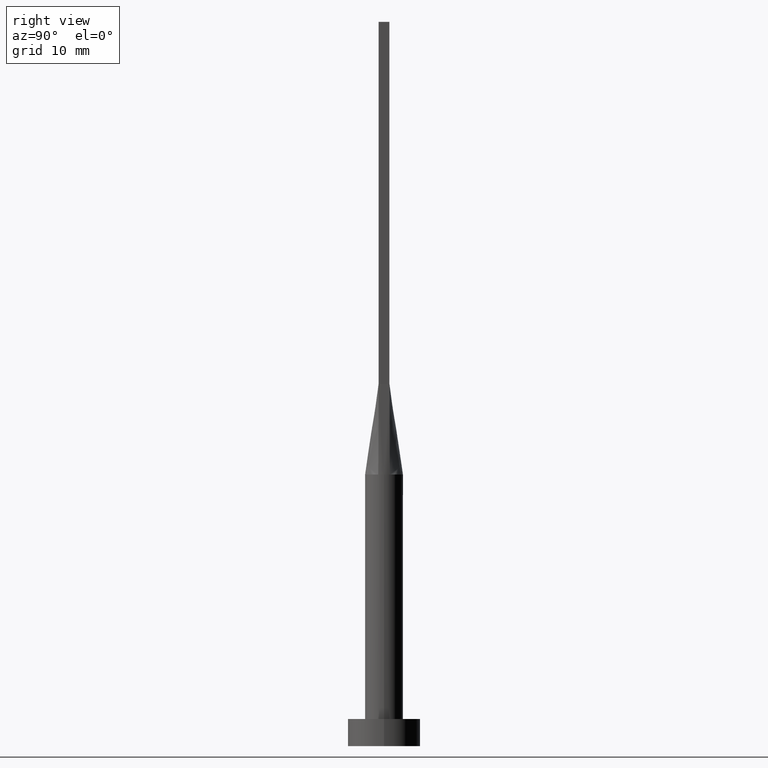
[diagram: clean part render]
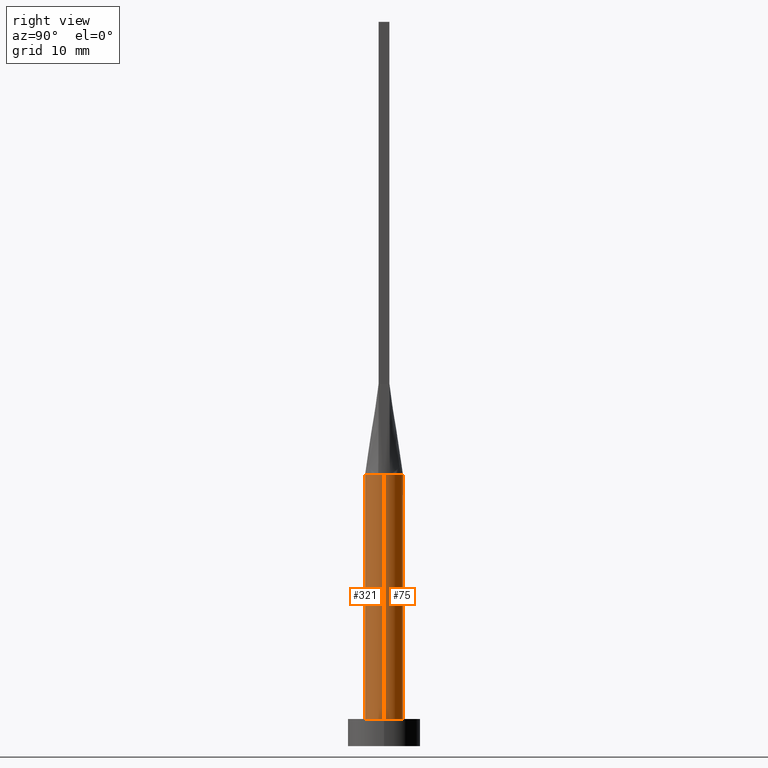
[diagram: same view with one multi-face feature highlighted, each face labeled with its STEP entity id]
A machine part, right view. The highlighted faces form ONE feature: a constant-radius fillet chain: 2 tangent blend faces with common blend radius 2.1 mm. The faces share edges in the B-rep.
Their STEP definitions:
[1] entity #75 (Cylinder):
#9 = CYLINDRICAL_SURFACE ( 'NONE', #532, 2.100000000000000089 ) ;
#10 = ORIENTED_EDGE ( 'NONE', *, *, #257, .F. ) ;
#23 = CARTESIAN_POINT ( 'NONE',  ( 2.100000000000000089, 2.571758278209441957E-16, 3.000000000000000000 ) ) ;
#68 = ORIENTED_EDGE ( 'NONE', *, *, #193, .F. ) ;
#72 = VECTOR ( 'NONE', #146, 1000.000000000000000 ) ;
#75 = ADVANCED_FACE ( 'NONE', ( #332 ), #9, .T. ) ;
#78 = CARTESIAN_POINT ( 'NONE',  ( -2.002622288503867587, 0.6324075186587619912, 30.00000000000000000 ) ) ;
#84 = CARTESIAN_POINT ( 'NONE',  ( -2.100000000000000089, 0.000000000000000000, 30.00000000000000000 ) ) ;
#88 = CARTESIAN_POINT ( 'NONE',  ( 0.000000000000000000, 0.000000000000000000, 30.00000000000000000 ) ) ;
#89 = EDGE_CURVE ( 'NONE', #178, #326, #455, .T. ) ;
#94 = CARTESIAN_POINT ( 'NONE',  ( -0.5124799074986362557, 2.051574327850739454, 30.00000000000000711 ) ) ;
#119 = LINE ( 'NONE', #84, #338 ) ;
#129 = CARTESIAN_POINT ( 'NONE',  ( 1.184262492297964098, 1.748903470433445628, 29.99999999999999289 ) ) ;
#134 = CARTESIAN_POINT ( 'NONE',  ( -1.184262492297963876, 1.748903470433446294, 30.00000000000000000 ) ) ;
#140 = AXIS2_PLACEMENT_3D ( 'NONE', #88, #169, #324 ) ;
#143 = DIRECTION ( 'NONE',  ( 0.000000000000000000, 0.000000000000000000, 1.000000000000000000 ) ) ;
#146 = DIRECTION ( 'NONE',  ( -0.000000000000000000, -0.000000000000000000, -1.000000000000000000 ) ) ;
#158 = CARTESIAN_POINT ( 'NONE',  ( 1.667357759214464608, 1.291791096182927090, 30.00000000000001066 ) ) ;
#169 = DIRECTION ( 'NONE',  ( 0.000000000000000000, 0.000000000000000000, 1.000000000000000000 ) ) ;
#173 = CARTESIAN_POINT ( 'NONE',  ( 2.100000000000000089, 3.372022381799045987E-17, 30.00000000000000000 ) ) ;
#174 = DIRECTION ( 'NONE',  ( -0.000000000000000000, -0.000000000000000000, -1.000000000000000000 ) ) ;
#178 = VERTEX_POINT ( 'NONE', #23 ) ;
#188 = VERTEX_POINT ( 'NONE', #560 ) ;
#193 = EDGE_CURVE ( 'NONE', #271, #491, #317, .T. ) ;
#211 = AXIS2_PLACEMENT_3D ( 'NONE', #327, #579, #548 ) ;
#214 = VERTEX_POINT ( 'NONE', #78 ) ;
#224 = CARTESIAN_POINT ( 'NONE',  ( 0.000000000000000000, 0.000000000000000000, 30.00000000000000000 ) ) ;
#227 = CARTESIAN_POINT ( 'NONE',  ( -2.100000000000000089, 0.000000000000000000, 3.000000000000000000 ) ) ;
#229 = AXIS2_PLACEMENT_3D ( 'NONE', #553, #143, #505 ) ;
#234 = CARTESIAN_POINT ( 'NONE',  ( 0.9765948449220478444, 1.875594675604967065, 29.99999999999999645 ) ) ;
#254 = CARTESIAN_POINT ( 'NONE',  ( 1.952271707612931895, 0.7915068550356627597, 30.00000000000000355 ) ) ;
#257 = EDGE_CURVE ( 'NONE', #491, #214, #462, .T. ) ;
#266 = CARTESIAN_POINT ( 'NONE',  ( -1.667357759214464830, 1.291791096182927534, 30.00000000000000355 ) ) ;
#271 = VERTEX_POINT ( 'NONE', #173 ) ;
#289 = ORIENTED_EDGE ( 'NONE', *, *, #89, .T. ) ;
#296 = EDGE_CURVE ( 'NONE', #214, #188, #558, .T. ) ;
#300 = CARTESIAN_POINT ( 'NONE',  ( 2.002598039528881380, 0.6323997261616642884, 30.00000000000000000 ) ) ;
#317 = CIRCLE ( 'NONE', #229, 2.100000000000000089 ) ;
#324 = DIRECTION ( 'NONE',  ( 1.000000000000000000, 0.000000000000000000, 0.000000000000000000 ) ) ;
#326 = VERTEX_POINT ( 'NONE', #227 ) ;
#327 = CARTESIAN_POINT ( 'NONE',  ( 0.000000000000000000, 0.000000000000000000, 3.000000000000000000 ) ) ;
#332 = FACE_OUTER_BOUND ( 'NONE', #483, .T. ) ;
#338 = VECTOR ( 'NONE', #386, 1000.000000000000000 ) ;
#353 = CARTESIAN_POINT ( 'NONE',  ( -2.002622288503867587, 0.6324075186587619912, 30.00000000000000000 ) ) ;
#357 = ORIENTED_EDGE ( 'NONE', *, *, #413, .F. ) ;
#360 = CARTESIAN_POINT ( 'NONE',  ( 0.5124799074986362557, 2.051574327850739454, 30.00000000000001421 ) ) ;
#373 = CARTESIAN_POINT ( 'NONE',  ( 2.002598039528881380, 0.6323997261616642884, 30.00000000000000000 ) ) ;
#386 = DIRECTION ( 'NONE',  ( -0.000000000000000000, -0.000000000000000000, -1.000000000000000000 ) ) ;
#396 = DIRECTION ( 'NONE',  ( -1.000000000000000000, 0.000000000000000000, 0.000000000000000000 ) ) ;
#400 = CARTESIAN_POINT ( 'NONE',  ( 1.529462611013499451, 1.456669187245239527, 29.99999999999999645 ) ) ;
#403 = CARTESIAN_POINT ( 'NONE',  ( -1.878511276496549032, 0.9591670956957809580, 30.00000000000001066 ) ) ;
#413 = EDGE_CURVE ( 'NONE', #188, #326, #119, .T. ) ;
#434 = CARTESIAN_POINT ( 'NONE',  ( 0.2565105576742081062, 2.100000000000000533, 30.00000000000001421 ) ) ;
#441 = CARTESIAN_POINT ( 'NONE',  ( -0.2565105576742073845, 2.100000000000000533, 30.00000000000001066 ) ) ;
#455 = CIRCLE ( 'NONE', #211, 2.100000000000000089 ) ;
#462 = B_SPLINE_CURVE_WITH_KNOTS ( 'NONE', 3,
 ( #300, #254, #563, #158, #400, #129, #234, #360, #434, #441, #94, #497, #134, #542, #266, #403, #539, #353 ),
 .UNSPECIFIED., .F., .F.,
 ( 4, 2, 2, 2, 2, 2, 2, 2, 4 ),
 ( 0.000000000000000000, 0.1249999999999999167, 0.2499999999999998890, 0.3749999999999998335, 0.4999999999999998890, 0.6249999999999998890, 0.7499999999999998890, 0.8750000000000000000, 1.000000000000000000 ),
 .UNSPECIFIED. ) ;
#483 = EDGE_LOOP ( 'NONE', ( #68, #500, #289, #357, #495, #10 ) ) ;
#491 = VERTEX_POINT ( 'NONE', #373 ) ;
#495 = ORIENTED_EDGE ( 'NONE', *, *, #296, .F. ) ;
#497 = CARTESIAN_POINT ( 'NONE',  ( -0.9765948449220482885, 1.875594675604967509, 30.00000000000001066 ) ) ;
#500 = ORIENTED_EDGE ( 'NONE', *, *, #516, .T. ) ;
#505 = DIRECTION ( 'NONE',  ( 1.000000000000000000, 0.000000000000000000, 0.000000000000000000 ) ) ;
#516 = EDGE_CURVE ( 'NONE', #271, #178, #556, .T. ) ;
#532 = AXIS2_PLACEMENT_3D ( 'NONE', #224, #174, #396 ) ;
#539 = CARTESIAN_POINT ( 'NONE',  ( -1.952271707612931895, 0.7915068550356629817, 30.00000000000000355 ) ) ;
#542 = CARTESIAN_POINT ( 'NONE',  ( -1.529462611013499451, 1.456669187245239527, 29.99999999999999645 ) ) ;
#548 = DIRECTION ( 'NONE',  ( 1.000000000000000000, 0.000000000000000000, 0.000000000000000000 ) ) ;
#551 = CARTESIAN_POINT ( 'NONE',  ( 2.100000000000000089, 2.571758278209441957E-16, 30.00000000000000000 ) ) ;
#553 = CARTESIAN_POINT ( 'NONE',  ( 0.000000000000000000, 0.000000000000000000, 30.00000000000000000 ) ) ;
#556 = LINE ( 'NONE', #551, #72 ) ;
#558 = CIRCLE ( 'NONE', #140, 2.100000000000000089 ) ;
#560 = CARTESIAN_POINT ( 'NONE',  ( -2.100000000000000089, -1.284268198382905442E-16, 30.00000000000000000 ) ) ;
#563 = CARTESIAN_POINT ( 'NONE',  ( 1.878511276496548366, 0.9591670956957804028, 30.00000000000001066 ) ) ;
#579 = DIRECTION ( 'NONE',  ( 0.000000000000000000, 0.000000000000000000, 1.000000000000000000 ) ) ;
[2] entity #321 (Cylinder):
#3 = CARTESIAN_POINT ( 'NONE',  ( 0.000000000000000000, 0.000000000000000000, 30.00000000000000000 ) ) ;
#5 = CARTESIAN_POINT ( 'NONE',  ( 0.000000000000000000, 0.000000000000000000, 30.00000000000000000 ) ) ;
#23 = CARTESIAN_POINT ( 'NONE',  ( 2.100000000000000089, 2.571758278209441957E-16, 3.000000000000000000 ) ) ;
#34 = VERTEX_POINT ( 'NONE', #210 ) ;
#42 = DIRECTION ( 'NONE',  ( 1.000000000000000000, 0.000000000000000000, 0.000000000000000000 ) ) ;
#43 = CARTESIAN_POINT ( 'NONE',  ( 0.000000000000000000, 0.000000000000000000, 3.000000000000000000 ) ) ;
#47 = CARTESIAN_POINT ( 'NONE',  ( 0.000000000000000000, 0.000000000000000000, 30.00000000000000000 ) ) ;
#48 = CARTESIAN_POINT ( 'NONE',  ( 2.002626276893244128, -0.6324088233005202841, 30.00000000000000000 ) ) ;
#54 = EDGE_CURVE ( 'NONE', #188, #34, #209, .T. ) ;
#64 = VERTEX_POINT ( 'NONE', #48 ) ;
#72 = VECTOR ( 'NONE', #146, 1000.000000000000000 ) ;
#83 = EDGE_CURVE ( 'NONE', #64, #271, #565, .T. ) ;
#84 = CARTESIAN_POINT ( 'NONE',  ( -2.100000000000000089, 0.000000000000000000, 30.00000000000000000 ) ) ;
#98 = FACE_OUTER_BOUND ( 'NONE', #154, .T. ) ;
#119 = LINE ( 'NONE', #84, #338 ) ;
#122 = CIRCLE ( 'NONE', #467, 2.100000000000000089 ) ;
#126 = DIRECTION ( 'NONE',  ( -0.000000000000000000, -0.000000000000000000, -1.000000000000000000 ) ) ;
#128 = EDGE_CURVE ( 'NONE', #326, #178, #122, .T. ) ;
#135 = DIRECTION ( 'NONE',  ( 0.000000000000000000, 0.000000000000000000, 1.000000000000000000 ) ) ;
#146 = DIRECTION ( 'NONE',  ( -0.000000000000000000, -0.000000000000000000, -1.000000000000000000 ) ) ;
#150 = ORIENTED_EDGE ( 'NONE', *, *, #128, .T. ) ;
#154 = EDGE_LOOP ( 'NONE', ( #384, #285, #523, #519, #541, #150 ) ) ;
#173 = CARTESIAN_POINT ( 'NONE',  ( 2.100000000000000089, 3.372022381799045987E-17, 30.00000000000000000 ) ) ;
#178 = VERTEX_POINT ( 'NONE', #23 ) ;
#188 = VERTEX_POINT ( 'NONE', #560 ) ;
#190 = AXIS2_PLACEMENT_3D ( 'NONE', #5, #135, #393 ) ;
#206 = DIRECTION ( 'NONE',  ( 0.000000000000000000, 0.000000000000000000, 1.000000000000000000 ) ) ;
#209 = CIRCLE ( 'NONE', #241, 2.100000000000000089 ) ;
#210 = CARTESIAN_POINT ( 'NONE',  ( -2.002601997802567535, -0.6324010168594718095, 30.00000000000000000 ) ) ;
#227 = CARTESIAN_POINT ( 'NONE',  ( -2.100000000000000089, 0.000000000000000000, 3.000000000000000000 ) ) ;
#241 = AXIS2_PLACEMENT_3D ( 'NONE', #564, #206, #426 ) ;
#271 = VERTEX_POINT ( 'NONE', #173 ) ;
#272 = CYLINDRICAL_SURFACE ( 'NONE', #409, 2.100000000000000089 ) ;
#285 = ORIENTED_EDGE ( 'NONE', *, *, #83, .F. ) ;
#313 = DIRECTION ( 'NONE',  ( 0.000000000000000000, 0.000000000000000000, 1.000000000000000000 ) ) ;
#320 = DIRECTION ( 'NONE',  ( 0.000000000000000000, 0.000000000000000000, 1.000000000000000000 ) ) ;
#321 = ADVANCED_FACE ( 'NONE', ( #98 ), #272, .T. ) ;
#326 = VERTEX_POINT ( 'NONE', #227 ) ;
#330 = EDGE_CURVE ( 'NONE', #34, #64, #362, .T. ) ;
#338 = VECTOR ( 'NONE', #386, 1000.000000000000000 ) ;
#362 = CIRCLE ( 'NONE', #508, 2.100000000000000089 ) ;
#384 = ORIENTED_EDGE ( 'NONE', *, *, #516, .F. ) ;
#386 = DIRECTION ( 'NONE',  ( -0.000000000000000000, -0.000000000000000000, -1.000000000000000000 ) ) ;
#393 = DIRECTION ( 'NONE',  ( 1.000000000000000000, -1.776356839400250465E-15, 0.000000000000000000 ) ) ;
#404 = DIRECTION ( 'NONE',  ( 1.000000000000000000, 0.000000000000000000, 0.000000000000000000 ) ) ;
#409 = AXIS2_PLACEMENT_3D ( 'NONE', #47, #126, #438 ) ;
#413 = EDGE_CURVE ( 'NONE', #188, #326, #119, .T. ) ;
#426 = DIRECTION ( 'NONE',  ( 1.000000000000000000, 0.000000000000000000, 0.000000000000000000 ) ) ;
#438 = DIRECTION ( 'NONE',  ( -1.000000000000000000, 0.000000000000000000, 0.000000000000000000 ) ) ;
#467 = AXIS2_PLACEMENT_3D ( 'NONE', #43, #320, #404 ) ;
#508 = AXIS2_PLACEMENT_3D ( 'NONE', #3, #313, #42 ) ;
#516 = EDGE_CURVE ( 'NONE', #271, #178, #556, .T. ) ;
#519 = ORIENTED_EDGE ( 'NONE', *, *, #54, .F. ) ;
#523 = ORIENTED_EDGE ( 'NONE', *, *, #330, .F. ) ;
#541 = ORIENTED_EDGE ( 'NONE', *, *, #413, .T. ) ;
#551 = CARTESIAN_POINT ( 'NONE',  ( 2.100000000000000089, 2.571758278209441957E-16, 30.00000000000000000 ) ) ;
#556 = LINE ( 'NONE', #551, #72 ) ;
#560 = CARTESIAN_POINT ( 'NONE',  ( -2.100000000000000089, -1.284268198382905442E-16, 30.00000000000000000 ) ) ;
#564 = CARTESIAN_POINT ( 'NONE',  ( 0.000000000000000000, 0.000000000000000000, 30.00000000000000000 ) ) ;
#565 = CIRCLE ( 'NONE', #190, 2.100000000000000089 ) ;